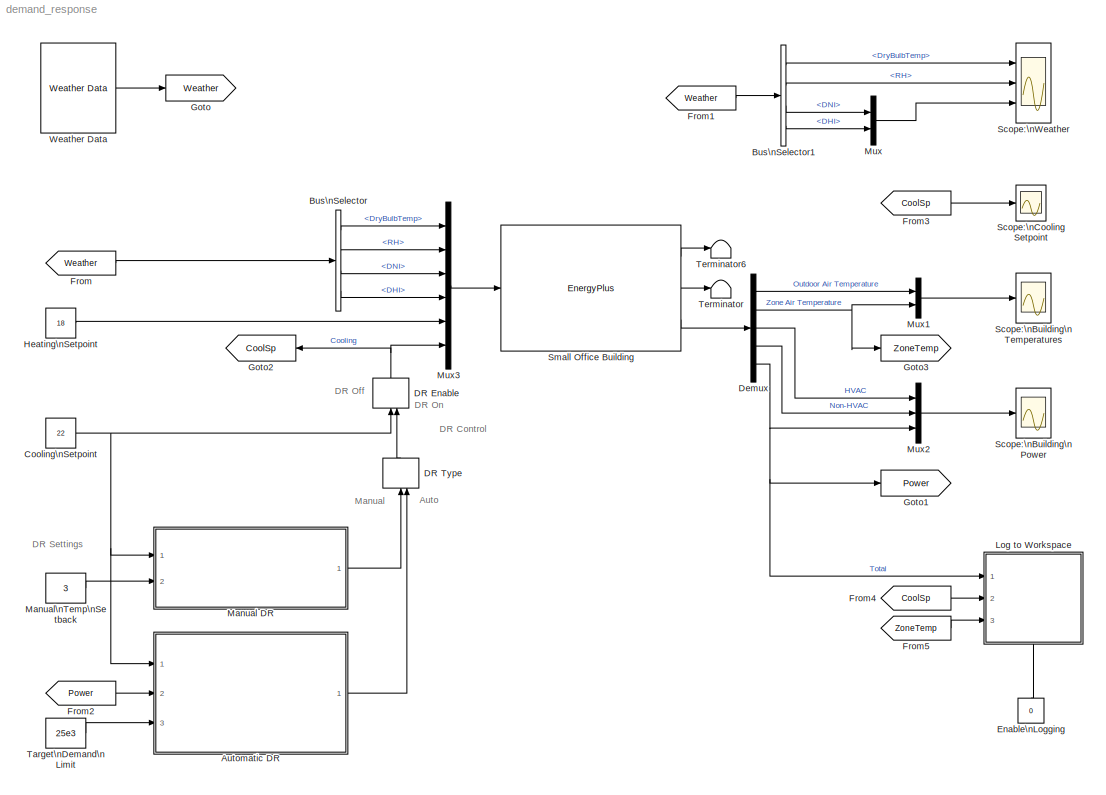
MODEL demand_response
KIND model
CONFIG PostLoadFcn = % Force reinitialization of Weather block to create bus definition\nwBlk = [gcs '/Weather Data'];\nset_param(wBlk,'initbus',get_param(wBlk,'initbus'));\nclear('wBlk');
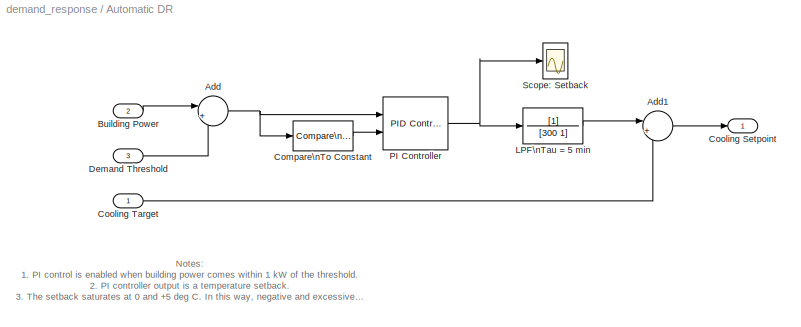
BLOCK [SubSystem] Automatic DR
  FunctionWithSeparateData = off
  MaskHideContents = off
  MinAlgLoopOccurrences = off
  Opaque = off
  Ports = [3, 1]
  PropExecContextOutsideSubsystem = off
  RTWSystemCode = Auto
  RequestExecContextInheritance = off
  SID = 187
BLOCK [Sum] Automatic DR/Add
  IconShape = round
  InputSameDT = off
  Inputs = |+-
  OutDataTypeStr = Inherit: Inherit via internal rule
  Ports = [2, 1]
  SID = 225
  SaturateOnIntegerOverflow = off
BLOCK [Sum] Automatic DR/Add1
  IconShape = round
  InputSameDT = off
  Inputs = |++
  OutDataTypeStr = Inherit: Inherit via internal rule
  Ports = [2, 1]
  SID = 227
  SaturateOnIntegerOverflow = off
BLOCK [Inport] Automatic DR/Building Power
  IconDisplay = Port number
  Port = 2
  SID = 201
BLOCK [Reference] Automatic DR/Compare\nTo Constant  REF=simulink/Logic and Bit\nOperations/Compare\nTo Constant
  OutDataTypeStr = boolean
  Ports = [1, 1]
  SID = 245
  SourceBlock = simulink/Logic and Bit\nOperations/Compare\nTo Constant
  SourceType = Compare To Constant
  ZeroCross = on
  const = -500
  relop = <=
BLOCK [Outport] Automatic DR/Cooling Setpoint
  IconDisplay = Port number
  SID = 189
BLOCK [Inport] Automatic DR/Cooling Target
  IconDisplay = Port number
  SID = 188
BLOCK [Inport] Automatic DR/Demand Threshold
  IconDisplay = Port number
  Port = 3
  SID = 202
BLOCK [TransferFcn] Automatic DR/LPF\nTau = 5 min
  Denominator = [300 1]
  SID = 244
BLOCK [Reference] Automatic DR/PI Controller  REF=simulink/Continuous/PID Controller
  AntiWindupMode = none
  Controller = PID
  D = 0
  DOutDataTypeStr = Inherit: Inherit via internal rule
  DOutMax = []
  DOutMin = []
  DParamDataTypeStr = Inherit: Inherit via internal rule
  DParamMax = []
  DParamMin = []
  ExternalReset = level
  FilterContinuousStateAttributes = ''
  FilterMethod = Forward Euler
  FilterOutDataTypeStr = Inherit: Inherit via internal rule
  FilterOutMax = []
  FilterOutMin = []
  FilterRTWStateStorageClass = Auto
  FilterStateMustResolveToSignalObject = off
  Form = Parallel
  I = 2e-6
  IOutDataTypeStr = Inherit: Inherit via internal rule
  IOutMax = []
  IOutMin = []
  IParamDataTypeStr = Inherit: Inherit via internal rule
  IParamMax = []
  IParamMin = []
  IgnoreLimit = off
  InitialConditionForFilter = 0
  InitialConditionForIntegrator = 0
  InitialConditionSource = internal
  IntegratorContinuousStateAttributes = ''
  IntegratorMethod = Forward Euler
  IntegratorOutDataTypeStr = Inherit: Inherit via internal rule
  IntegratorOutMax = []
  IntegratorOutMin = []
  IntegratorRTWStateStorageClass = Auto
  IntegratorStateMustResolveToSignalObject = off
  Kb = 1
  KbOutDataTypeStr = Inherit: Inherit via internal rule
  KbOutMax = []
  KbOutMin = []
  KbParamDataTypeStr = Inherit: Inherit via internal rule
  KbParamMax = []
  KbParamMin = []
  Kt = 1
  KtOutDataTypeStr = Inherit: Inherit via internal rule
  KtOutMax = []
  KtOutMin = []
  KtParamDataTypeStr = Inherit: Inherit via internal rule
  KtParamMax = []
  KtParamMin = []
  LimitOutput = on
  LinearizeAsGain = on
  LockScale = off
  LowerSaturationLimit = 0
  N = 100
  NOutDataTypeStr = Inherit: Inherit via internal rule
  NOutMax = []
  NOutMin = []
  NParamDataTypeStr = Inherit: Inherit via internal rule
  NParamMax = []
  NParamMin = []
  P = 2e-4
  POutDataTypeStr = Inherit: Inherit via internal rule
  POutMax = []
  POutMin = []
  PParamDataTypeStr = Inherit: Inherit via internal rule
  PParamMax = []
  PParamMin = []
  Ports = [2, 1]
  RndMeth = Floor
  SID = 231
  SampleTime = 1
  SaturateOnIntegerOverflow = off
  SaturationOutDataTypeStr = Inherit: Same as input
  SaturationOutMax = []
  SaturationOutMin = []
  SourceBlock = simulink/Continuous/PID Controller
  SourceType = PID 1dof
  SumAccumDataTypeStr = Inherit: Inherit via internal rule
  SumDAccumDataTypeStr = Inherit: Inherit via internal rule
  SumDOutDataTypeStr = Inherit: Inherit via internal rule
  SumDOutMax = []
  SumDOutMin = []
  SumI1AccumDataTypeStr = Inherit: Inherit via internal rule
  SumI1OutDataTypeStr = Inherit: Inherit via internal rule
  SumI1OutMax = []
  SumI1OutMin = []
  SumI2AccumDataTypeStr = Inherit: Inherit via internal rule
  SumI2OutDataTypeStr = Inherit: Inherit via internal rule
  SumI2OutMax = []
  SumI2OutMin = []
  SumI3AccumDataTypeStr = Inherit: Inherit via internal rule
  SumI3OutDataTypeStr = Inherit: Inherit via internal rule
  SumI3OutMax = []
  SumI3OutMin = []
  SumOutDataTypeStr = Inherit: Inherit via internal rule
  SumOutMax = []
  SumOutMin = []
  TimeDomain = Continuous-time
  TrackingMode = off
  UpperSaturationLimit = 3
  ZeroCross = on
BLOCK [Scope] Automatic DR/Scope: Setback
  DataFormat = StructureWithTime
  Floating = off
  LegendLocations = 0.74856     0.83849     0.21905    0.053509
  LimitDataPoints = off
  NumInputPorts = 1
  Ports = [1]
  SID = 246
  SampleTime = 0
  SaveName = ScopeData4
  ShowLegends = on
  TimeRange = 90000
  YMax = 4
  YMin = 0
BLOCK [BusSelector] Bus\nSelector
  OutputSignals = DryBulbTemp,RH,DNI,DHI
  Ports = [1, 4]
  SID = 165
BLOCK [BusSelector] Bus\nSelector1
  OutputSignals = DryBulbTemp,RH,DNI,DHI
  Ports = [1, 4]
  SID = 174
BLOCK [Constant] Cooling\nSetpoint
  SID = 168
  Value = 22
BLOCK [ManualSwitch] DR Enable
  CurrentSetting = 0
  SID = 195
BLOCK [ManualSwitch] DR Type
  CurrentSetting = 0
  SID = 193
BLOCK [Demux] Demux
  DisplayOption = bar
  Outputs = 5
  Ports = [1, 5]
  SID = 158
BLOCK [Constant] Enable\nLogging
  SID = 273
  Value = 0
BLOCK [From] From
  GotoTag = Weather
  SID = 166
  TagVisibility = global
BLOCK [From] From1
  GotoTag = Weather
  SID = 171
  TagVisibility = global
BLOCK [From] From2
  GotoTag = Power
  SID = 214
  TagVisibility = global
BLOCK [From] From3
  GotoTag = CoolSp
  SID = 288
  TagVisibility = global
BLOCK [From] From4
  GotoTag = CoolSp
  SID = 290
  TagVisibility = global
BLOCK [From] From5
  GotoTag = ZoneTemp
  SID = 291
  TagVisibility = global
BLOCK [Goto] Goto
  GotoTag = Weather
  SID = 161
  TagVisibility = global
BLOCK [Goto] Goto1
  GotoTag = Power
  SID = 213
  TagVisibility = global
BLOCK [Goto] Goto2
  GotoTag = CoolSp
  SID = 287
  TagVisibility = global
BLOCK [Goto] Goto3
  GotoTag = ZoneTemp
  SID = 289
  TagVisibility = global
BLOCK [Constant] Heating\nSetpoint
  SID = 167
  Value = 18
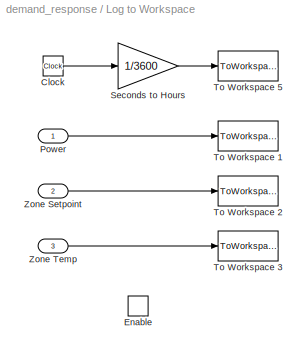
BLOCK [SubSystem] Log to Workspace
  FunctionWithSeparateData = off
  MaskHideContents = off
  MinAlgLoopOccurrences = off
  Opaque = off
  Ports = [3, 0, 1]
  PropExecContextOutsideSubsystem = off
  RTWSystemCode = Auto
  RequestExecContextInheritance = off
  SID = 274
  TreatAsAtomicUnit = on
BLOCK [Clock] Log to Workspace/Clock
  Decimation = 1
  SID = 280
BLOCK [EnablePort] Log to Workspace/Enable
  Ports = []
  SID = 279
BLOCK [Inport] Log to Workspace/Power
  IconDisplay = Port number
  SID = 275
BLOCK [Gain] Log to Workspace/Seconds to Hours
  Gain = 1/3600
  OutDataTypeStr = Inherit: Inherit via internal rule
  ParamDataTypeStr = Inherit: Inherit via internal rule
  SID = 281
  SaturateOnIntegerOverflow = off
BLOCK [ToWorkspace] Log to Workspace/To Workspace 1
  MaxDataPoints = inf
  Ports = [1]
  SID = 282
  SampleTime = -1
  VariableName = power
BLOCK [ToWorkspace] Log to Workspace/To Workspace 2
  MaxDataPoints = inf
  Ports = [1]
  SID = 283
  SampleTime = -1
  VariableName = zone_sp
BLOCK [ToWorkspace] Log to Workspace/To Workspace 3
  MaxDataPoints = inf
  Ports = [1]
  SID = 284
  SampleTime = -1
  VariableName = zone_temp
BLOCK [ToWorkspace] Log to Workspace/To Workspace 5
  MaxDataPoints = inf
  Ports = [1]
  SID = 286
  SampleTime = -1
  VariableName = t
BLOCK [Inport] Log to Workspace/Zone Setpoint
  IconDisplay = Port number
  Port = 2
  SID = 276
BLOCK [Inport] Log to Workspace/Zone Temp
  IconDisplay = Port number
  Port = 3
  SID = 277
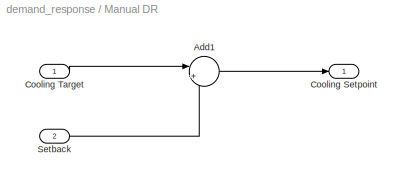
BLOCK [SubSystem] Manual DR
  FunctionWithSeparateData = off
  MaskHideContents = off
  MinAlgLoopOccurrences = off
  Opaque = off
  Ports = [2, 1]
  PropExecContextOutsideSubsystem = off
  RTWSystemCode = Auto
  RequestExecContextInheritance = off
  SID = 255
BLOCK [Sum] Manual DR/Add1
  IconShape = round
  InputSameDT = off
  Inputs = |++
  OutDataTypeStr = Inherit: Inherit via internal rule
  Ports = [2, 1]
  SID = 268
  SaturateOnIntegerOverflow = off
BLOCK [Outport] Manual DR/Cooling Setpoint
  IconDisplay = Port number
  SID = 265
BLOCK [Inport] Manual DR/Cooling Target
  IconDisplay = Port number
  SID = 266
BLOCK [Inport] Manual DR/Setback
  IconDisplay = Port number
  Port = 2
  SID = 267
BLOCK [Constant] Manual\nTemp\nSetback
  SID = 269
  Value = 3
BLOCK [Mux] Mux
  DisplayOption = bar
  Inputs = 2
  Ports = [2, 1]
  SID = 175
BLOCK [Mux] Mux1
  DisplayOption = bar
  Inputs = 2
  Ports = [2, 1]
  SID = 183
BLOCK [Mux] Mux2
  DisplayOption = bar
  Inputs = 3
  Ports = [3, 1]
  SID = 185
BLOCK [Mux] Mux3
  DisplayOption = bar
  Inputs = 6
  Ports = [6, 1]
  SID = 164
BLOCK [Scope] Scope:\nBuilding\nPower
  DataFormat = StructureWithTime
  Floating = off
  LimitDataPoints = off
  NumInputPorts = 1
  Ports = [1]
  SID = 184
  SampleTime = 0
  SaveName = ScopeData2
  ShowLegends = on
  TimeRange = 90000
  YMax = 30000
  YMin = 0
BLOCK [Scope] Scope:\nBuilding\nTemperatures
  DataFormat = StructureWithTime
  Floating = off
  LimitDataPoints = off
  NumInputPorts = 1
  Ports = [1]
  SID = 182
  SampleTime = 0
  SaveName = ScopeData1
  ShowLegends = on
  TimeRange = 90000
  YMax = 35
  YMin = 5
BLOCK [Scope] Scope:\nCooling Setpoint
  DataFormat = StructureWithTime
  Floating = off
  LegendLocations = 0.76444        0.85     0.17714    0.053509
  LimitDataPoints = off
  NumInputPorts = 1
  Ports = [1]
  SID = 228
  SampleTime = 0
  SaveName = ScopeData3
  ShowLegends = on
  TimeRange = 90000
  YMax = 26
  YMin = 22
BLOCK [Scope] Scope:\nWeather
  DataFormat = StructureWithTime
  Floating = off
  LimitDataPoints = off
  NumInputPorts = 3
  Ports = [3]
  SID = 170
  SampleTime = 0
  ShowLegends = on
  TimeRange = 90000
  YMax = 34~70~700
  YMin = 16~10~0
BLOCK [Reference] Small Office Building  REF=CampusEnergyModeling/Buildings/EnergyPlus
  Ports = [1, 3]
  SID = 157
  SourceBlock = CampusEnergyModeling/Buildings/EnergyPlus
  SourceType = EnergyPlus Cosimulation
  UserData = DataTag0
  UserDataPersistent = on
  fname = small_office.idf
  mlep_defaults = on
  nout = 5
  port = 0
  rel_path = on
  time_step = 60
  timeout = 10
  weather_profile = USA_IL_Chicago-OHare.Intl.AP.725300_TMY3
  work_dir = small_office
BLOCK [Constant] Target\nDemand\nLimit
  SID = 212
  Value = 25e3
BLOCK [Terminator] Terminator
  SID = 169
BLOCK [Terminator] Terminator6
  SID = 181
BLOCK [Reference] Weather Data  REF=CampusEnergyModeling/Weather/Weather Data
  Ports = [0, 1]
  SID = 163
  SourceBlock = CampusEnergyModeling/Weather/Weather Data
  SourceType = Weather Data From File
  fname = Weather.mat
  initbus = on
ANNOTATION (root): Auto
ANNOTATION (root): DR Control
ANNOTATION (root): DR Off
ANNOTATION (root): DR On
ANNOTATION (root): DR Settings
ANNOTATION (root): Manual
ANNOTATION Automatic DR: Notes:\n1. PI control is enabled when building power comes within 1 kW of the threshold.\n2. PI controller output is a temperature setback.\n3. The setback saturates at 0 and +5 deg C. In this way, negative and excessive setbacks are avoided.
LINE Automatic DR/Add1:1 -> Automatic DR/Cooling Setpoint:1
NET Automatic DR/Add:1 -> Automatic DR/Compare\nTo Constant:1, Automatic DR/PI Controller:1
LINE Automatic DR/Building Power:1 -> Automatic DR/Add:1
LINE Automatic DR/Compare\nTo Constant:1 -> Automatic DR/PI Controller:2
LINE Automatic DR/Cooling Target:1 -> Automatic DR/Add1:2
LINE Automatic DR/Demand Threshold:1 -> Automatic DR/Add:2
LINE Automatic DR/LPF\nTau = 5 min:1 -> Automatic DR/Add1:1
NET Automatic DR/PI Controller:1 -> Automatic DR/LPF\nTau = 5 min:1, Automatic DR/Scope: Setback:1
LINE Automatic DR:1 -> DR Type:2
LINE Bus\nSelector1:1 -> Scope:\nWeather:1
LINE Bus\nSelector1:2 -> Scope:\nWeather:2
LINE Bus\nSelector1:3 -> Mux:1
LINE Bus\nSelector1:4 -> Mux:2
LINE Bus\nSelector:1 -> Mux3:1
LINE Bus\nSelector:2 -> Mux3:2
LINE Bus\nSelector:3 -> Mux3:3
LINE Bus\nSelector:4 -> Mux3:4
NET Cooling\nSetpoint:1 -> Automatic DR:1, DR Enable:1, Manual DR:1
NET DR Enable:1 -> Goto2:1, Mux3:6
LINE DR Type:1 -> DR Enable:2
LINE Demux:1 -> Mux1:1
NET Demux:2 -> Goto3:1, Mux1:2
LINE Demux:3 -> Mux2:1
LINE Demux:4 -> Mux2:2
NET Demux:5 -> Goto1:1, Log to Workspace:1, Mux2:3
LINE Enable\nLogging:1 -> Log to Workspace:enable
LINE From1:1 -> Bus\nSelector1:1
LINE From2:1 -> Automatic DR:2
LINE From3:1 -> Scope:\nCooling Setpoint:1
LINE From4:1 -> Log to Workspace:2
LINE From5:1 -> Log to Workspace:3
LINE From:1 -> Bus\nSelector:1
LINE Heating\nSetpoint:1 -> Mux3:5
LINE Log to Workspace/Clock:1 -> Log to Workspace/Seconds to Hours:1
LINE Log to Workspace/Power:1 -> Log to Workspace/To Workspace 1:1
LINE Log to Workspace/Seconds to Hours:1 -> Log to Workspace/To Workspace 5:1
LINE Log to Workspace/Zone Setpoint:1 -> Log to Workspace/To Workspace 2:1
LINE Log to Workspace/Zone Temp:1 -> Log to Workspace/To Workspace 3:1
LINE Manual DR/Add1:1 -> Manual DR/Cooling Setpoint:1
LINE Manual DR/Cooling Target:1 -> Manual DR/Add1:1
LINE Manual DR/Setback:1 -> Manual DR/Add1:2
LINE Manual DR:1 -> DR Type:1
LINE Manual\nTemp\nSetback:1 -> Manual DR:2
LINE Mux1:1 -> Scope:\nBuilding\nTemperatures:1
LINE Mux2:1 -> Scope:\nBuilding\nPower:1
LINE Mux3:1 -> Small Office Building:1
LINE Mux:1 -> Scope:\nWeather:3
LINE Small Office Building:1 -> Terminator6:1
LINE Small Office Building:2 -> Terminator:1
LINE Small Office Building:3 -> Demux:1
LINE Target\nDemand\nLimit:1 -> Automatic DR:3
LINE Weather Data:1 -> Goto:1
note: NET lines group one-source signal fan-out (src -> all destinations, sorted); 1:1 wires keep LINE
